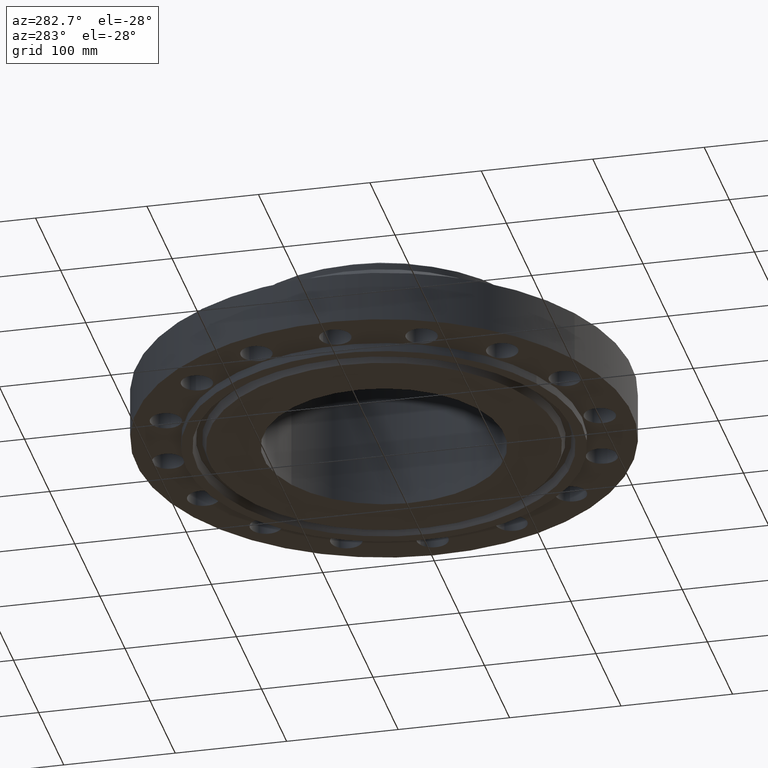
[diagram: clean part render]
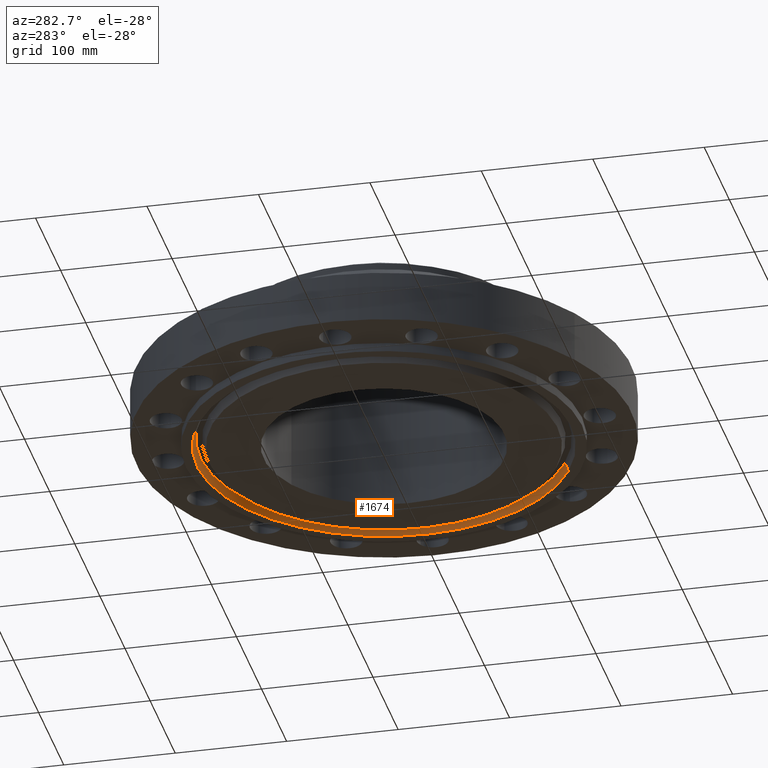
[diagram: same view with one face highlighted and labeled with its STEP entity id]
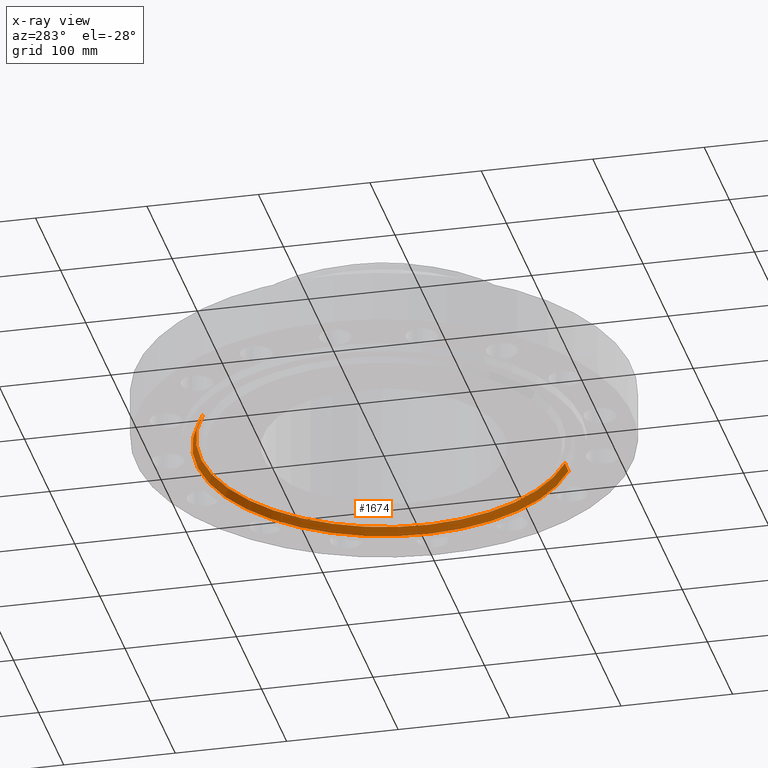
[diagram: x-ray of the same camera — body ghosted, the highlighted face saturated]
A machine part, auxiliary view. The second image highlights one B-rep face of the part: STEP entity #1674.
The next image is the same camera in x-ray: the body ghosted, the highlighted face saturated — about 0% of this face is hidden behind the body in this view.
In plain terms, the highlighted conical surface has half-angle 23 deg.
Its self-contained STEP definition (entity closure, byte-faithful):
#1535=AXIS2_PLACEMENT_3D('Circle Axis2P3D',#1533,#1534,$) ;
#1609=AXIS2_PLACEMENT_3D('Cone Axis2P3D',#1606,#1607,#1608) ;
#1630=AXIS2_PLACEMENT_3D('Circle Axis2P3D',#1628,#1629,$) ;
#1528=CARTESIAN_POINT('Vertex',(3.16876309742,-5.80038194284,-0.313000000001)) ;
#1530=CARTESIAN_POINT('Vertex',(-3.16876309742,5.80038194284,-0.313000000001)) ;
#1533=CARTESIAN_POINT('Axis2P3D Location',(0.,-5.59482469102E-016,-0.313000000001)) ;
#1575=CARTESIAN_POINT('Vertex',(-3.10890997382,5.69082153499,-0.0188873350169)) ;
#1577=CARTESIAN_POINT('Vertex',(3.10890997382,-5.69082153499,-0.0188873350169)) ;
#1606=CARTESIAN_POINT('Axis2P3D Location',(0.,0.,-0.0188873350169)) ;
#1611=CARTESIAN_POINT('Line Origine',(-3.13883653562,5.74560173892,-0.165943667509)) ;
#1616=CARTESIAN_POINT('Line Origine',(3.13883653562,-5.74560173892,-0.165943667509)) ;
#1628=CARTESIAN_POINT('Axis2P3D Location',(0.,0.,-0.0188873350169)) ;
#1534=DIRECTION('Axis2P3D Direction',(0.,0.,-0.0393700787402)) ;
#1607=DIRECTION('Axis2P3D Direction',(-0.,-0.,-0.0393700787402)) ;
#1608=DIRECTION('Axis2P3D XDirection',(-0.0188750212049,0.0345504945626,0.)) ;
#1612=DIRECTION('Vector Direction',(-0.00737505833565,0.0134999537303,-0.0362403485611)) ;
#1617=DIRECTION('Vector Direction',(0.00737505833565,-0.0134999537303,-0.0362403485611)) ;
#1629=DIRECTION('Axis2P3D Direction',(0.,0.,0.0393700787402)) ;
#1613=VECTOR('Line Direction',#1612,0.0393700787402) ;
#1618=VECTOR('Line Direction',#1617,0.0393700787402) ;
#1669=ORIENTED_EDGE('',*,*,#1537,.T.) ;
#1670=ORIENTED_EDGE('',*,*,#1620,.T.) ;
#1671=ORIENTED_EDGE('',*,*,#1632,.T.) ;
#1672=ORIENTED_EDGE('',*,*,#1615,.F.) ;
#1674=ADVANCED_FACE('PartBody',(#1673),#1610,.F.) ;
#1536=CIRCLE('generated circle',#1535,6.60950000003) ;
#1631=CIRCLE('generated circle',#1630,6.48465658061) ;
#1610=CONICAL_SURFACE('Cone',#1609,6.48465658061,0.401425727959) ;
#1537=EDGE_CURVE('',#1531,#1529,#1536,.T.) ;
#1615=EDGE_CURVE('',#1531,#1576,#1614,.F.) ;
#1620=EDGE_CURVE('',#1529,#1578,#1619,.F.) ;
#1632=EDGE_CURVE('',#1578,#1576,#1631,.T.) ;
#1668=EDGE_LOOP('',(#1669,#1670,#1671,#1672)) ;
#1673=FACE_OUTER_BOUND('',#1668,.T.) ;
#1614=LINE('Line',#1611,#1613) ;
#1619=LINE('Line',#1616,#1618) ;
#1529=VERTEX_POINT('',#1528) ;
#1531=VERTEX_POINT('',#1530) ;
#1576=VERTEX_POINT('',#1575) ;
#1578=VERTEX_POINT('',#1577) ;